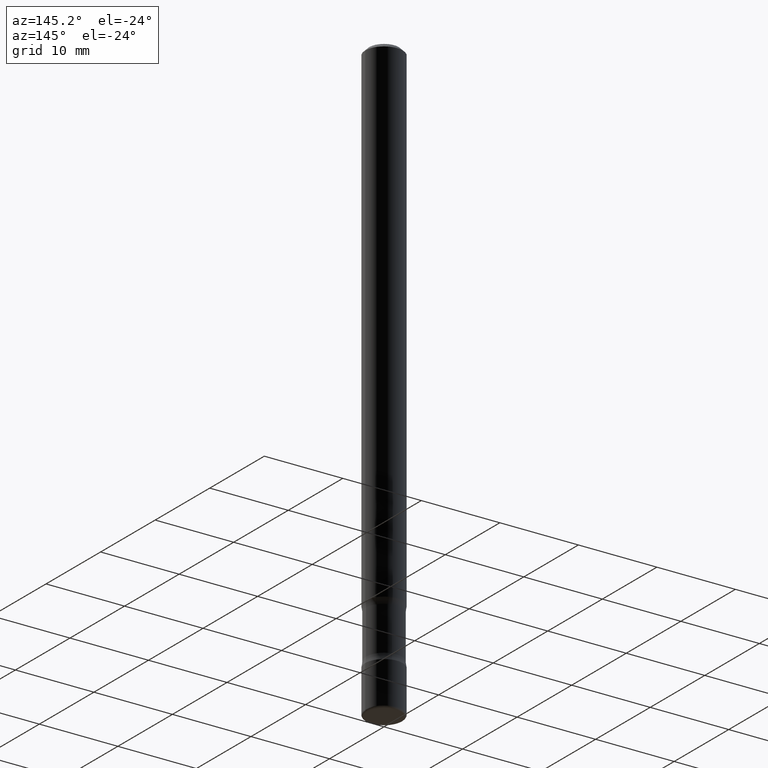
[diagram: clean part render]
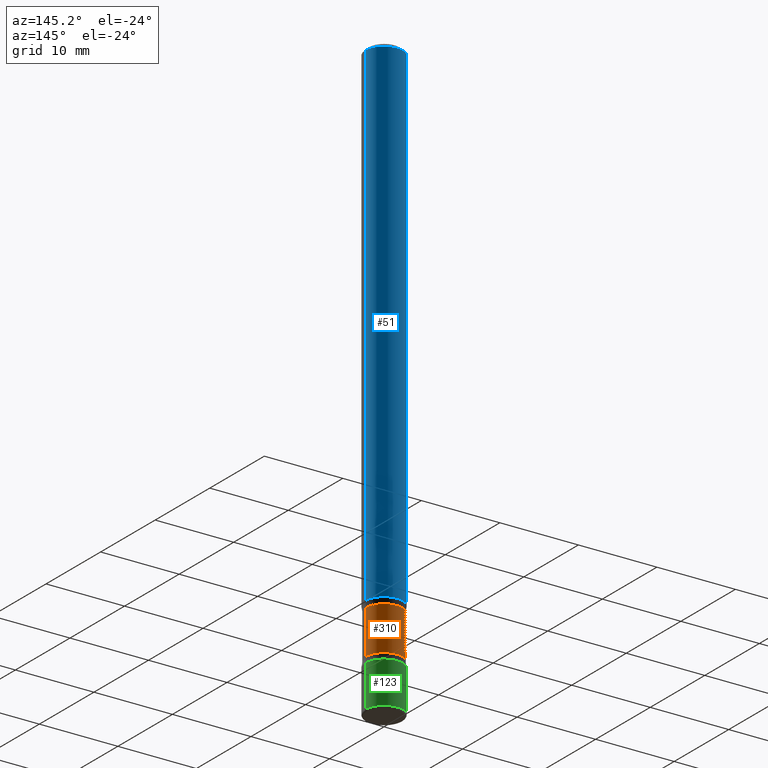
[diagram: same view with three faces highlighted in distinct colors, each labeled with its STEP entity id]
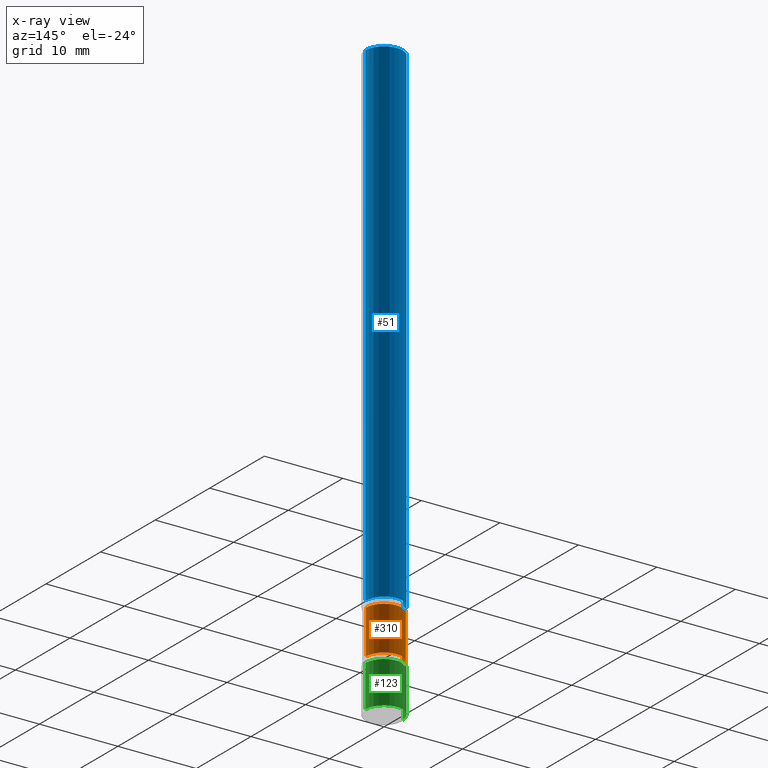
[diagram: x-ray of the same camera — body ghosted, the three highlighted faces saturated]
A machine part, auxiliary view with three faces highlighted in distinct colors.
The next image is the same camera in x-ray (body ghosted, the three faces saturated) — at least one of them is partly hidden behind the body in this view.
Their STEP definitions:

[orange] entity #310 — the highlighted cylindrical surface (edge-blend (fillet) strip) has radius 2.286 mm, axis along (-0, 0, 1).
#12 = ORIENTED_EDGE ( 'NONE', *, *, #467, .T. ) ;
#15 = DIRECTION ( 'NONE',  ( -2.445468806185136597E-29, 3.491481338843145583E-15, 1.000000000000000000 ) ) ;
#17 = VERTEX_POINT ( 'NONE', #740 ) ;
#23 = CARTESIAN_POINT ( 'NONE',  ( 0.08999999999999992728, -1.023287500604753476E-14, -2.750811885547141511 ) ) ;
#63 = EDGE_CURVE ( 'NONE', #162, #544, #615, .T. ) ;
#100 = DIRECTION ( 'NONE',  ( -2.445468806185136877E-29, 3.491481338843145188E-15, 1.000000000000000000 ) ) ;
#117 = CARTESIAN_POINT ( 'NONE',  ( -0.08999999999999989952, -8.128941975895664340E-15, -2.530388114452858606 ) ) ;
#139 = CARTESIAN_POINT ( 'NONE',  ( -0.08999999999999991340, -8.089214884923775785E-15, -2.500000000000000000 ) ) ;
#147 = ORIENTED_EDGE ( 'NONE', *, *, #63, .F. ) ;
#162 = VERTEX_POINT ( 'NONE', #391 ) ;
#172 = CARTESIAN_POINT ( 'NONE',  ( 6.113672015462842613E-29, -8.728703347107864943E-15, -2.500000000000000000 ) ) ;
#198 = DIRECTION ( 'NONE',  ( 1.000000000000000000, -6.982962677686273810E-15, 0.000000000000000000 ) ) ;
#228 = DIRECTION ( 'NONE',  ( -2.445468806185136877E-29, 3.491481338843145188E-15, 1.000000000000000000 ) ) ;
#267 = VERTEX_POINT ( 'NONE', #23 ) ;
#310 = ADVANCED_FACE ( 'NONE', ( #542 ), #584, .T. ) ;
#314 = DIRECTION ( 'NONE',  ( -2.445468806185136597E-29, 3.491481338843145583E-15, 1.000000000000000000 ) ) ;
#319 = ORIENTED_EDGE ( 'NONE', *, *, #334, .F. ) ;
#334 = EDGE_CURVE ( 'NONE', #267, #162, #405, .T. ) ;
#357 = DIRECTION ( 'NONE',  ( -2.445468806185136597E-29, 3.491481338843145583E-15, 1.000000000000000000 ) ) ;
#372 = CARTESIAN_POINT ( 'NONE',  ( 6.187985201436090676E-29, -8.834802881642648397E-15, -2.530388114452858606 ) ) ;
#377 = ORIENTED_EDGE ( 'NONE', *, *, #392, .T. ) ;
#391 = CARTESIAN_POINT ( 'NONE',  ( 0.08999999999999989952, -9.463269522634413348E-15, -2.530388114452858606 ) ) ;
#392 = EDGE_CURVE ( 'NONE', #17, #544, #770, .T. ) ;
#397 = AXIS2_PLACEMENT_3D ( 'NONE', #172, #357, #602 ) ;
#405 = LINE ( 'NONE', #420, #699 ) ;
#420 = CARTESIAN_POINT ( 'NONE',  ( 0.08999999999999991340, -9.357169988099628315E-15, -2.500000000000000000 ) ) ;
#454 = CARTESIAN_POINT ( 'NONE',  ( 6.727024657788852023E-29, -9.604408365055771383E-15, -2.750811885547141511 ) ) ;
#467 = EDGE_CURVE ( 'NONE', #267, #17, #561, .T. ) ;
#542 = FACE_OUTER_BOUND ( 'NONE', #591, .T. ) ;
#544 = VERTEX_POINT ( 'NONE', #117 ) ;
#557 = DIRECTION ( 'NONE',  ( 1.000000000000000000, -6.982962677686276177E-15, 0.000000000000000000 ) ) ;
#561 = CIRCLE ( 'NONE', #778, 0.08999999999999992728 ) ;
#584 = CYLINDRICAL_SURFACE ( 'NONE', #397, 0.08999999999999991340 ) ;
#585 = VECTOR ( 'NONE', #100, 39.37007874015748143 ) ;
#591 = EDGE_LOOP ( 'NONE', ( #12, #377, #147, #319 ) ) ;
#597 = AXIS2_PLACEMENT_3D ( 'NONE', #372, #314, #557 ) ;
#602 = DIRECTION ( 'NONE',  ( 1.000000000000000000, -6.982962677686264344E-15, 0.000000000000000000 ) ) ;
#615 = CIRCLE ( 'NONE', #597, 0.08999999999999989952 ) ;
#699 = VECTOR ( 'NONE', #228, 39.37007874015748143 ) ;
#740 = CARTESIAN_POINT ( 'NONE',  ( -0.08999999999999992728, -9.004646993843572358E-15, -2.750811885547141511 ) ) ;
#770 = LINE ( 'NONE', #139, #585 ) ;
#778 = AXIS2_PLACEMENT_3D ( 'NONE', #454, #15, #198 ) ;

[blue] entity #51 — the highlighted cylindrical surface (edge-blend (fillet) strip) has radius 2.3812 mm, axis along (-0, 0, 1).
#13 = AXIS2_PLACEMENT_3D ( 'NONE', #61, #564, #316 ) ;
#16 = DIRECTION ( 'NONE',  ( -2.445468806185136877E-29, 3.491481338843145188E-15, 1.000000000000000000 ) ) ;
#22 = ORIENTED_EDGE ( 'NONE', *, *, #265, .F. ) ;
#51 = ADVANCED_FACE ( 'NONE', ( #191 ), #255, .T. ) ;
#61 = CARTESIAN_POINT ( 'NONE',  ( 6.113672015462842613E-29, -8.728703347107864943E-15, -2.500000000000000000 ) ) ;
#104 = VERTEX_POINT ( 'NONE', #607 ) ;
#112 = ORIENTED_EDGE ( 'NONE', *, *, #131, .T. ) ;
#114 = DIRECTION ( 'NONE',  ( 1.000000000000000000, -6.982962677686267499E-15, 0.000000000000000000 ) ) ;
#131 = EDGE_CURVE ( 'NONE', #525, #104, #635, .T. ) ;
#191 = FACE_OUTER_BOUND ( 'NONE', #413, .T. ) ;
#244 = CARTESIAN_POINT ( 'NONE',  ( -0.09374999999999975020, 5.848231242562227268E-16, -0.02000000000000004205 ) ) ;
#255 = CYLINDRICAL_SURFACE ( 'NONE', #474, 0.09374999999999987510 ) ;
#264 = ORIENTED_EDGE ( 'NONE', *, *, #495, .T. ) ;
#265 = EDGE_CURVE ( 'NONE', #525, #469, #753, .T. ) ;
#279 = EDGE_CURVE ( 'NONE', #469, #598, #662, .T. ) ;
#316 = DIRECTION ( 'NONE',  ( 1.000000000000000000, -6.982962677686273810E-15, 0.000000000000000000 ) ) ;
#318 = DIRECTION ( 'NONE',  ( -2.445468806185136597E-29, 3.491481338843145583E-15, 1.000000000000000000 ) ) ;
#382 = ORIENTED_EDGE ( 'NONE', *, *, #279, .F. ) ;
#394 = CARTESIAN_POINT ( 'NONE',  ( 0.09374999999999987510, -6.546527510330865180E-16, 4.571415727308683500E-30 ) ) ;
#399 = VECTOR ( 'NONE', #717, 39.37007874015748143 ) ;
#413 = EDGE_LOOP ( 'NONE', ( #112, #264, #382, #22 ) ) ;
#469 = VERTEX_POINT ( 'NONE', #536 ) ;
#474 = AXIS2_PLACEMENT_3D ( 'NONE', #506, #746, #744 ) ;
#480 = LINE ( 'NONE', #696, #399 ) ;
#495 = EDGE_CURVE ( 'NONE', #104, #598, #480, .T. ) ;
#506 = CARTESIAN_POINT ( 'NONE',  ( 0.000000000000000000, 0.000000000000000000, 0.000000000000000000 ) ) ;
#525 = VERTEX_POINT ( 'NONE', #605 ) ;
#533 = AXIS2_PLACEMENT_3D ( 'NONE', #767, #318, #114 ) ;
#536 = CARTESIAN_POINT ( 'NONE',  ( 0.09374999999999975020, -7.130013140679424100E-16, -0.02000000000000004205 ) ) ;
#564 = DIRECTION ( 'NONE',  ( -2.445468806185136597E-29, 3.491481338843145583E-15, 1.000000000000000000 ) ) ;
#598 = VERTEX_POINT ( 'NONE', #244 ) ;
#605 = CARTESIAN_POINT ( 'NONE',  ( 0.09374999999999998612, -9.383356098140953236E-15, -2.500000000000000000 ) ) ;
#607 = CARTESIAN_POINT ( 'NONE',  ( -0.09374999999999998612, -3.733132672167263885E-15, -2.500000000000000000 ) ) ;
#624 = VECTOR ( 'NONE', #16, 39.37007874015748143 ) ;
#635 = CIRCLE ( 'NONE', #13, 0.09374999999999998612 ) ;
#662 = CIRCLE ( 'NONE', #533, 0.09374999999999975020 ) ;
#696 = CARTESIAN_POINT ( 'NONE',  ( -0.09374999999999987510, 6.661338147750930368E-16, -4.611501647113967689E-30 ) ) ;
#717 = DIRECTION ( 'NONE',  ( -2.445468806185136877E-29, 3.491481338843145188E-15, 1.000000000000000000 ) ) ;
#744 = DIRECTION ( 'NONE',  ( 1.000000000000000000, -6.982962677686265133E-15, 4.876176775795935793E-29 ) ) ;
#746 = DIRECTION ( 'NONE',  ( -2.445468806185136597E-29, 3.491481338843145583E-15, 1.000000000000000000 ) ) ;
#753 = LINE ( 'NONE', #394, #624 ) ;
#767 = CARTESIAN_POINT ( 'NONE',  ( 4.890937612370283668E-31, -6.982962677686305168E-17, -0.02000000000000004205 ) ) ;

[green] entity #123 — the highlighted cylindrical surface (edge-blend (fillet) strip) has radius 2.3812 mm, axis along (-0, 0, 1).
#3 = CIRCLE ( 'NONE', #43, 0.09374999999999998612 ) ;
#7 = EDGE_CURVE ( 'NONE', #788, #540, #284, .T. ) ;
#10 = CARTESIAN_POINT ( 'NONE',  ( 0.09374999999999998612, -1.036516065062364471E-14, -2.781200000000000561 ) ) ;
#39 = DIRECTION ( 'NONE',  ( 1.000000000000000000, -6.982962677686263555E-15, 0.000000000000000000 ) ) ;
#43 = AXIS2_PLACEMENT_3D ( 'NONE', #731, #54, #490 ) ;
#50 = CARTESIAN_POINT ( 'NONE',  ( 0.09374999999999998612, -6.546527510330874055E-16, 4.571415727308689105E-30 ) ) ;
#54 = DIRECTION ( 'NONE',  ( -2.445468806185136597E-29, 3.491481338843145583E-15, 1.000000000000000000 ) ) ;
#111 = AXIS2_PLACEMENT_3D ( 'NONE', #160, #715, #39 ) ;
#123 = ADVANCED_FACE ( 'NONE', ( #185 ), #304, .T. ) ;
#130 = DIRECTION ( 'NONE',  ( -2.445468806185136877E-29, 3.491481338843145188E-15, 1.000000000000000000 ) ) ;
#133 = VECTOR ( 'NONE', #130, 39.37007874015748143 ) ;
#160 = CARTESIAN_POINT ( 'NONE',  ( 7.311951730493558245E-29, -1.043952920314100628E-14, -2.990000000000000213 ) ) ;
#168 = EDGE_LOOP ( 'NONE', ( #421, #408, #216, #283 ) ) ;
#185 = FACE_OUTER_BOUND ( 'NONE', #168, .T. ) ;
#197 = AXIS2_PLACEMENT_3D ( 'NONE', #684, #555, #800 ) ;
#216 = ORIENTED_EDGE ( 'NONE', *, *, #601, .F. ) ;
#237 = LINE ( 'NONE', #50, #442 ) ;
#283 = ORIENTED_EDGE ( 'NONE', *, *, #537, .F. ) ;
#284 = LINE ( 'NONE', #560, #133 ) ;
#304 = CYLINDRICAL_SURFACE ( 'NONE', #197, 0.09374999999999998612 ) ;
#408 = ORIENTED_EDGE ( 'NONE', *, *, #7, .T. ) ;
#421 = ORIENTED_EDGE ( 'NONE', *, *, #455, .T. ) ;
#422 = VERTEX_POINT ( 'NONE', #10 ) ;
#442 = VECTOR ( 'NONE', #600, 39.37007874015748143 ) ;
#455 = EDGE_CURVE ( 'NONE', #484, #788, #691, .T. ) ;
#484 = VERTEX_POINT ( 'NONE', #513 ) ;
#490 = DIRECTION ( 'NONE',  ( 1.000000000000000000, -6.982962677686263555E-15, 0.000000000000000000 ) ) ;
#513 = CARTESIAN_POINT ( 'NONE',  ( 0.09375000000000016653, -1.109418195417409615E-14, -2.990000000000000213 ) ) ;
#537 = EDGE_CURVE ( 'NONE', #484, #422, #237, .T. ) ;
#540 = VERTEX_POINT ( 'NONE', #797 ) ;
#555 = DIRECTION ( 'NONE',  ( -2.445468806185136597E-29, 3.491481338843145583E-15, 1.000000000000000000 ) ) ;
#560 = CARTESIAN_POINT ( 'NONE',  ( -0.09374999999999998612, 6.661338147750938256E-16, -4.611501647113973295E-30 ) ) ;
#595 = CARTESIAN_POINT ( 'NONE',  ( -0.09375000000000016653, -9.773395388365912358E-15, -2.990000000000000213 ) ) ;
#600 = DIRECTION ( 'NONE',  ( -2.445468806185136877E-29, 3.491481338843145188E-15, 1.000000000000000000 ) ) ;
#601 = EDGE_CURVE ( 'NONE', #422, #540, #3, .T. ) ;
#684 = CARTESIAN_POINT ( 'NONE',  ( 0.000000000000000000, 0.000000000000000000, 0.000000000000000000 ) ) ;
#691 = CIRCLE ( 'NONE', #111, 0.09374999999999998612 ) ;
#715 = DIRECTION ( 'NONE',  ( -2.445468806185136597E-29, 3.491481338843145583E-15, 1.000000000000000000 ) ) ;
#731 = CARTESIAN_POINT ( 'NONE',  ( 6.801337843762102328E-29, -9.710507899590557993E-15, -2.781200000000000561 ) ) ;
#788 = VERTEX_POINT ( 'NONE', #595 ) ;
#797 = CARTESIAN_POINT ( 'NONE',  ( -0.09374999999999998612, -9.408884736590688213E-15, -2.781200000000000561 ) ) ;
#800 = DIRECTION ( 'NONE',  ( 1.000000000000000000, -6.982962677686266711E-15, 4.876176775795935793E-29 ) ) ;